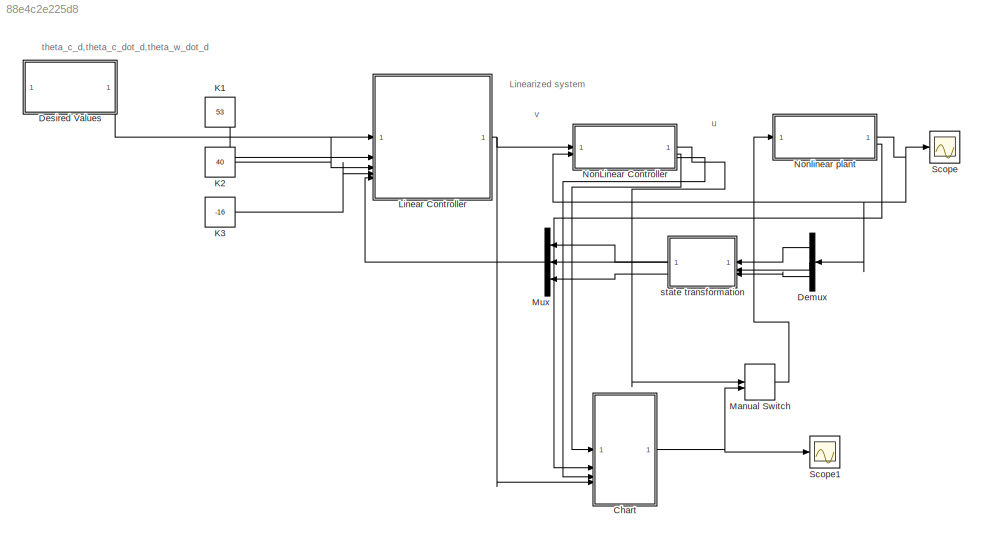
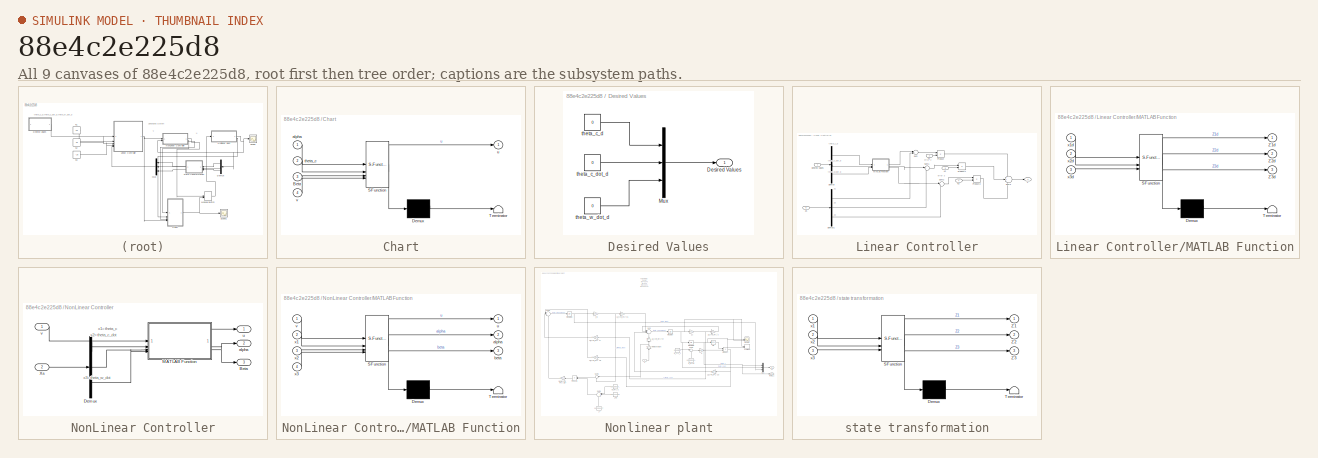
[diagram: thumbnail index - all 9 canvases of the model, root first then tree order]
MODEL slx_88e4c2e225d8
KIND model
CONFIG AbsTol = auto
CONFIG EnableMultiTasking = off
CONFIG FixedStep = 0.001
CONFIG MaxStep = auto
CONFIG MinStep = auto
CONFIG RelTol = 1e-3
CONFIG SampleTimeConstraint = Unconstrained
CONFIG SolverName = FixedStepAuto
CONFIG StartTime = 0.0
CONFIG StopTime = 5
BLOCK [SubSystem] Chart
  ErrorFcn = Stateflow.Translate.translate
  PermitHierarchicalResolution = ExplicitOnly
  SFBlockType = Chart
  TreatAsAtomicUnit = on
BLOCK [Demux] Chart/ Demux 
  Outputs = 1
BLOCK [S-Function] Chart/ SFunction 
  EnableBusSupport = off
  FunctionName = sf_sfun
  PortCounts = [4 2]
  SFcnIsStateOwnerBlock = off
  SFunctionDeploymentMode = off
  Tag = Stateflow S-Function 1
BLOCK [Terminator] Chart/ Terminator 
BLOCK [Inport] Chart/Beta
  Port = 3
BLOCK [Inport] Chart/alpha
BLOCK [Inport] Chart/theta_c
  Port = 2
BLOCK [Outport] Chart/u
BLOCK [Inport] Chart/v
  Port = 4
BLOCK [Demux] Demux
  Outputs = 3
BLOCK [SubSystem] Desired Values
BLOCK [Outport] Desired Values/Desired Values
BLOCK [Mux] Desired Values/Mux
  DisplayOption = bar
  Inputs = 3
BLOCK [Constant] Desired Values/theta_c_d
  Value = 0
BLOCK [Constant] Desired Values/theta_c_dot_d
  Value = 0
BLOCK [Constant] Desired Values/theta_w_dot_d
  Value = 0
BLOCK [Constant] K1
  Value = 53
BLOCK [Constant] K2
  Value = 40
BLOCK [Constant] K3
  Value = -16
BLOCK [SubSystem] Linear Controller
  NameLocation = top
BLOCK [Demux] Linear Controller/Demux
  Outputs = 3
BLOCK [Demux] Linear Controller/Demux1
  Outputs = 3
BLOCK [Inport] Linear Controller/Desired Values
BLOCK [Inport] Linear Controller/K1
  Port = 2
BLOCK [Inport] Linear Controller/K2
  Port = 3
BLOCK [Inport] Linear Controller/K3
  Port = 4
BLOCK [SubSystem] Linear Controller/MATLAB Function
  ErrorFcn = Stateflow.Translate.translate
  LibrarySourceBlock = simulink/User-Defined\nFunctions/MATLAB Function
  PermitHierarchicalResolution = ExplicitOnly
  SFBlockType = MATLAB Function
  TreatAsAtomicUnit = on
BLOCK [Demux] Linear Controller/MATLAB Function/ Demux 
  Outputs = 1
BLOCK [S-Function] Linear Controller/MATLAB Function/ SFunction 
  EnableBusSupport = off
  FunctionName = sf_sfun
  PortCounts = [3 4]
  SFcnIsStateOwnerBlock = off
  SFunctionDeploymentMode = off
  Tag = Stateflow S-Function 4
BLOCK [Terminator] Linear Controller/MATLAB Function/ Terminator 
BLOCK [Outport] Linear Controller/MATLAB Function/Z1d
BLOCK [Outport] Linear Controller/MATLAB Function/Z2d
  Port = 2
BLOCK [Outport] Linear Controller/MATLAB Function/Z3d
  Port = 3
BLOCK [Inport] Linear Controller/MATLAB Function/x1d
BLOCK [Inport] Linear Controller/MATLAB Function/x2d
  Port = 2
BLOCK [Inport] Linear Controller/MATLAB Function/x3d
  Port = 3
BLOCK [Product] Linear Controller/Product
BLOCK [Product] Linear Controller/Product1
BLOCK [Product] Linear Controller/Product2
BLOCK [Sum] Linear Controller/Sum
  Inputs = |+-
BLOCK [Sum] Linear Controller/Sum1
  Inputs = |+-
BLOCK [Sum] Linear Controller/Sum2
  Inputs = |+-
BLOCK [Sum] Linear Controller/Sum3
  Inputs = +++
BLOCK [Inport] Linear Controller/Zs
  Port = 5
BLOCK [Outport] Linear Controller/v
BLOCK [ManualSwitch] Manual Switch
BLOCK [Mux] Mux
  DisplayOption = bar
  Inputs = 3
BLOCK [SubSystem] NonLinear Controller
  NameLocation = top
BLOCK [Outport] NonLinear Controller/Beta
  Port = 3
BLOCK [Demux] NonLinear Controller/Demux
  Outputs = 3
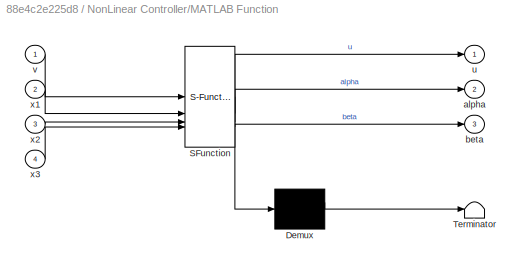
BLOCK [SubSystem] NonLinear Controller/MATLAB Function
  ErrorFcn = Stateflow.Translate.translate
  LibrarySourceBlock = simulink/User-Defined\nFunctions/MATLAB Function
  PermitHierarchicalResolution = ExplicitOnly
  SFBlockType = MATLAB Function
  TreatAsAtomicUnit = on
BLOCK [Demux] NonLinear Controller/MATLAB Function/ Demux 
  Outputs = 1
BLOCK [S-Function] NonLinear Controller/MATLAB Function/ SFunction 
  EnableBusSupport = off
  FunctionName = sf_sfun
  PortCounts = [4 4]
  SFcnIsStateOwnerBlock = off
  SFunctionDeploymentMode = off
  Tag = Stateflow S-Function 2
BLOCK [Terminator] NonLinear Controller/MATLAB Function/ Terminator 
BLOCK [Outport] NonLinear Controller/MATLAB Function/alpha
  Port = 2
BLOCK [Outport] NonLinear Controller/MATLAB Function/beta
  Port = 3
BLOCK [Outport] NonLinear Controller/MATLAB Function/u
BLOCK [Inport] NonLinear Controller/MATLAB Function/v
BLOCK [Inport] NonLinear Controller/MATLAB Function/x1
  Port = 2
BLOCK [Inport] NonLinear Controller/MATLAB Function/x2
  Port = 3
BLOCK [Inport] NonLinear Controller/MATLAB Function/x3
  Port = 4
BLOCK [Inport] NonLinear Controller/Xs
  Port = 2
BLOCK [Outport] NonLinear Controller/alpha
  Port = 2
BLOCK [Outport] NonLinear Controller/u
BLOCK [Inport] NonLinear Controller/v
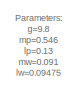
[diagram: Nonlinear plant - part 1/3, top center region]
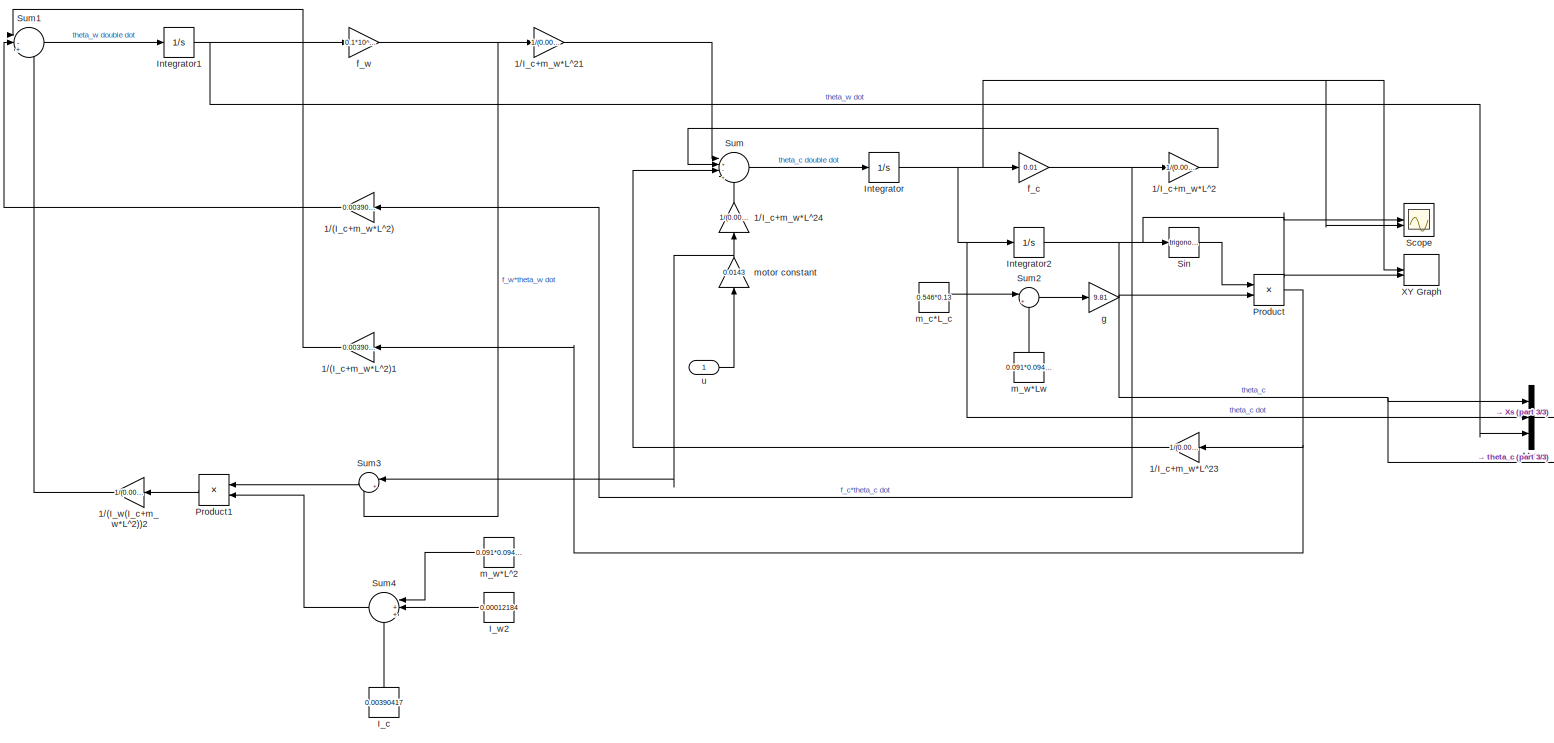
[diagram: Nonlinear plant - part 2/3, most of the canvas]
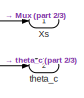
[diagram: Nonlinear plant - part 3/3, bottom right region]
BLOCK [SubSystem] Nonlinear plant
  NameLocation = top
BLOCK [Gain] Nonlinear plant/1//(I_c+m_w*L^2)
  Gain = 0.00390417+0.091*(0.09475^2)
BLOCK [Gain] Nonlinear plant/1//(I_c+m_w*L^2)1
  Gain = 0.00390417+0.091*(0.09475^2)
BLOCK [Gain] Nonlinear plant/1//(I_w(I_c+m_w*L^2))2
  Gain = 1/(0.00012184*((0.00390417)+0.091*0.09475^2))
BLOCK [Gain] Nonlinear plant/1//I_c+m_w*L^2
  Gain = 1/(0.00390417+(0.091)*(0.09475)^2)
BLOCK [Gain] Nonlinear plant/1//I_c+m_w*L^21
  Gain = 1/(0.00390417+(0.091)*(0.09475)^2)
BLOCK [Gain] Nonlinear plant/1//I_c+m_w*L^23
  Gain = 1/(0.00390417+(0.091)*(0.09475)^2)
BLOCK [Gain] Nonlinear plant/1//I_c+m_w*L^24
  Gain = 1/(0.00390417+(0.091)*(0.09475)^2)
  NameLocation = left
BLOCK [Constant] Nonlinear plant/I_c
  NameLocation = right
  Value = 0.00390417
BLOCK [Constant] Nonlinear plant/I_w2
  Value = 0.00012184
BLOCK [Integrator] Nonlinear plant/Integrator
BLOCK [Integrator] Nonlinear plant/Integrator1
BLOCK [Integrator] Nonlinear plant/Integrator2
BLOCK [Mux] Nonlinear plant/Mux
  DisplayOption = bar
  Inputs = 3
BLOCK [Product] Nonlinear plant/Product
BLOCK [Product] Nonlinear plant/Product1
BLOCK [Scope] Nonlinear plant/Scope
  Floating = off
  NumInputPorts = 2
  ScopeSpecificationString = Simulink.scopes.TimeScopeBlockCfg('CurrentConfiguration', extmgr.ConfigurationSet(extmgr.Configuration('Core','General UI',true),extmgr.Configuration('Core','Source UI',true),extmgr.Configuration('Sources','WiredSimulink',true,'DataLoggingVariableName','ScopeData1'),extmgr.Configuration('Visuals','Time Domain',true,'SerializedDisplays',{struct('MinYLimReal','-2041903.66107','MaxYLimReal','10538253...<+1547ch>
BLOCK [Trigonometry] Nonlinear plant/Sin
BLOCK [Sum] Nonlinear plant/Sum
  Inputs = |+-|+-
BLOCK [Sum] Nonlinear plant/Sum1
  Inputs = |-+|+
BLOCK [Sum] Nonlinear plant/Sum2
  Inputs = |++
BLOCK [Sum] Nonlinear plant/Sum3
  Inputs = |+-
BLOCK [Sum] Nonlinear plant/Sum4
  Inputs = |++|+
BLOCK [Record] Nonlinear plant/XY Graph
  CompatibilityTag = XY
  FileSettingsInternal = {"entries":[{"content":{"excelSettings":{"content":{},"type":"Streamout.ExcelSettings"}},"type":"Streamout.FileSettingStorage","uuid":"66a67cd6-09ae-4402-aca9-595720089f73"}],"packageUris":["http://schema.mathworks.com/mf0/streamout_blocks/R2020a"],"version":"1.0"}
  Layout = [1 1]
  SignalsInternal = {"entries":[{"content":{"signals":[{"content":{"blockPath":["Cube/Nonlinear plant/XY Graph"],"dimensions":[1],"domain":"Cube/Nonlinear plant/XY Graph","lineColor":"#0072bd","plots":[1],"port":1,"signalID":780,"signalName":"theta_c dot"},"type":"RecordBlkView.Signal","uuid":"a54ead99-843e-44f8-bb7c-9abc90be0651"},{"content":{"blockPath":["Cube/Nonlinear plant/XY Graph"],"dimensions":[1],"domain":"C...<+365ch>
  VisualizationBindings = {"xyplotplugin":{"info":[{"series":[{"bindingParametersList":[{"parameter":"Y-Axis","signalID":780,"signalName":"theta_c dot"},{"parameter":"X-Axis","signalID":783,"signalName":"theta_c"}],"seriesID":4721}],"subplotID":1}]}}
BLOCK [Outport] Nonlinear plant/Xs
BLOCK [Gain] Nonlinear plant/f_c
  Gain = 0.01
BLOCK [Gain] Nonlinear plant/f_w
  Gain = 0.1*10^-5
BLOCK [Gain] Nonlinear plant/g
  Gain = 9.81
BLOCK [Constant] Nonlinear plant/m_c*L_c
  Value = 0.546*0.13
BLOCK [Constant] Nonlinear plant/m_w*L^2
  Value = 0.091*0.09475^2
BLOCK [Constant] Nonlinear plant/m_w*Lw
  NameLocation = right
  Value = 0.091*0.09475
BLOCK [Gain] Nonlinear plant/motor constant
  Gain = 0.0143
  NameLocation = right
BLOCK [Outport] Nonlinear plant/theta_c
  Port = 2
BLOCK [Inport] Nonlinear plant/u
BLOCK [Scope] Scope
  Floating = off
  NumInputPorts = 1
  ScopeSpecificationString = Simulink.scopes.TimeScopeBlockCfg('CurrentConfiguration', extmgr.ConfigurationSet(extmgr.Configuration('Core','General UI',true),extmgr.Configuration('Core','Source UI',true),extmgr.Configuration('Sources','WiredSimulink',true),extmgr.Configuration('Visuals','Time Domain',true,'SerializedDisplays',{struct('MinYLimReal','-10.9946','MaxYLimReal','14.37195','YLabelReal','','MinYLimMag','0.00000','Max...<+1568ch>
BLOCK [Scope] Scope1
  Floating = off
  NumInputPorts = 1
  ScopeSpecificationString = Simulink.scopes.TimeScopeBlockCfg('CurrentConfiguration', extmgr.ConfigurationSet(extmgr.Configuration('Core','General UI',true),extmgr.Configuration('Core','Source UI',true),extmgr.Configuration('Sources','WiredSimulink',true,'DataLoggingVariableName','ScopeData1'),extmgr.Configuration('Visuals','Time Domain',true,'SerializedDisplays',{struct('MinYLimReal','-1.00000','MaxYLimReal','1.00000','YLab...<+1364ch>
BLOCK [SubSystem] state transformation
  ErrorFcn = Stateflow.Translate.translate
  LibrarySourceBlock = simulink/User-Defined\nFunctions/MATLAB Function
  PermitHierarchicalResolution = ExplicitOnly
  SFBlockType = MATLAB Function
  TreatAsAtomicUnit = on
BLOCK [Demux] state transformation/ Demux 
  Outputs = 1
BLOCK [S-Function] state transformation/ SFunction 
  EnableBusSupport = off
  FunctionName = sf_sfun
  PortCounts = [3 4]
  SFcnIsStateOwnerBlock = off
  SFunctionDeploymentMode = off
  Tag = Stateflow S-Function 3
BLOCK [Terminator] state transformation/ Terminator 
BLOCK [Outport] state transformation/Z1
BLOCK [Outport] state transformation/Z2
  Port = 2
BLOCK [Outport] state transformation/Z3
  Port = 3
BLOCK [Inport] state transformation/x1
BLOCK [Inport] state transformation/x2
  Port = 2
BLOCK [Inport] state transformation/x3
  Port = 3
ANNOTATION (root): Linearized system
ANNOTATION (root): theta_c_d,theta_c_dot_d,theta_w_dot_d
ANNOTATION (root): u
ANNOTATION (root): v
ANNOTATION Linear Controller: Z1
ANNOTATION Linear Controller: Z2
ANNOTATION Linear Controller: Z3
ANNOTATION Linear Controller: error 2
ANNOTATION Linear Controller: error 3
ANNOTATION Linear Controller: theta_c_d
ANNOTATION Linear Controller: theta_c_dot_d
ANNOTATION Linear Controller: theta_w_dot_d
ANNOTATION NonLinear Controller: x1=theta_c
ANNOTATION NonLinear Controller: x2=theta_c_dot
ANNOTATION NonLinear Controller: x3=theta_w_dot
ANNOTATION Nonlinear plant: Parameters: g=9.8 mp=0.546 lp=0.13 mw=0.091 lw=0.09475 Fp=0.01 Fw=0.1*10^-5 Km=0.0143 Ip=0.00390417 Iw=0.00012184
NET Chart:1 -> Manual Switch:2, Scope1:1
LINE Demux:1 -> state transformation:1
LINE Demux:2 -> state transformation:2
LINE Demux:3 -> state transformation:3
LINE Desired Values/Mux:1 -> Desired Values/Desired Values:1
LINE Desired Values/theta_c_d:1 -> Desired Values/Mux:1
LINE Desired Values/theta_c_dot_d:1 -> Desired Values/Mux:2
LINE Desired Values/theta_w_dot_d:1 -> Desired Values/Mux:3
LINE Desired Values:1 -> Linear Controller:1
LINE K1:1 -> Linear Controller:2
LINE K2:1 -> Linear Controller:3
LINE K3:1 -> Linear Controller:4
LINE Linear Controller/Demux1:1 -> Linear Controller/Sum:2
LINE Linear Controller/Demux1:2 -> Linear Controller/Sum1:2
LINE Linear Controller/Demux1:3 -> Linear Controller/Sum2:2
LINE Linear Controller/Demux:1 -> Linear Controller/MATLAB Function:1
LINE Linear Controller/Demux:2 -> Linear Controller/MATLAB Function:2
LINE Linear Controller/Demux:3 -> Linear Controller/MATLAB Function:3
LINE Linear Controller/Desired Values:1 -> Linear Controller/Demux:1
LINE Linear Controller/K1:1 -> Linear Controller/Product:2
LINE Linear Controller/K2:1 -> Linear Controller/Product1:2
LINE Linear Controller/K3:1 -> Linear Controller/Product2:2
LINE Linear Controller/MATLAB Function:1 -> Linear Controller/Sum:1
LINE Linear Controller/MATLAB Function:2 -> Linear Controller/Sum1:1
LINE Linear Controller/MATLAB Function:3 -> Linear Controller/Sum2:1
LINE Linear Controller/Product1:1 -> Linear Controller/Sum3:2
LINE Linear Controller/Product2:1 -> Linear Controller/Sum3:3
LINE Linear Controller/Product:1 -> Linear Controller/Sum3:1
LINE Linear Controller/Sum1:1 -> Linear Controller/Product1:1
LINE Linear Controller/Sum2:1 -> Linear Controller/Product2:1
LINE Linear Controller/Sum3:1 -> Linear Controller/v:1
LINE Linear Controller/Sum:1 -> Linear Controller/Product:1
LINE Linear Controller/Zs:1 -> Linear Controller/Demux1:1
NET Linear Controller:1 -> Chart:4, NonLinear Controller:1
LINE Manual Switch:1 -> Nonlinear plant:1
LINE Mux:1 -> Linear Controller:5
LINE NonLinear Controller/Demux:1 -> NonLinear Controller/MATLAB Function:2
LINE NonLinear Controller/Demux:2 -> NonLinear Controller/MATLAB Function:3
LINE NonLinear Controller/Demux:3 -> NonLinear Controller/MATLAB Function:4
LINE NonLinear Controller/MATLAB Function:1 -> NonLinear Controller/u:1
LINE NonLinear Controller/MATLAB Function:2 -> NonLinear Controller/alpha:1
LINE NonLinear Controller/MATLAB Function:3 -> NonLinear Controller/Beta:1
LINE NonLinear Controller/Xs:1 -> NonLinear Controller/Demux:1
LINE NonLinear Controller/v:1 -> NonLinear Controller/MATLAB Function:1
LINE NonLinear Controller:1 -> Manual Switch:1
LINE NonLinear Controller:2 -> Chart:1
LINE NonLinear Controller:3 -> Chart:3
LINE Nonlinear plant/1//(I_c+m_w*L^2)1:1 -> Nonlinear plant/Sum1:1
LINE Nonlinear plant/1//(I_c+m_w*L^2):1 -> Nonlinear plant/Sum1:2
LINE Nonlinear plant/1//(I_w(I_c+m_w*L^2))2:1 -> Nonlinear plant/Sum1:3
LINE Nonlinear plant/1//I_c+m_w*L^21:1 -> Nonlinear plant/Sum:1
LINE Nonlinear plant/1//I_c+m_w*L^23:1 -> Nonlinear plant/Sum:3
LINE Nonlinear plant/1//I_c+m_w*L^24:1 -> Nonlinear plant/Sum:4
LINE Nonlinear plant/1//I_c+m_w*L^2:1 -> Nonlinear plant/Sum:2
LINE Nonlinear plant/I_c:1 -> Nonlinear plant/Sum4:3
LINE Nonlinear plant/I_w2:1 -> Nonlinear plant/Sum4:2
NET Nonlinear plant/Integrator1:1 -> Nonlinear plant/Mux:3, Nonlinear plant/f_w:1
NET Nonlinear plant/Integrator2:1 -> Nonlinear plant/Mux:1, Nonlinear plant/Scope:1, Nonlinear plant/Sin:1, Nonlinear plant/XY Graph:2, Nonlinear plant/theta_c:1
NET Nonlinear plant/Integrator:1 -> Nonlinear plant/Integrator2:1, Nonlinear plant/Mux:2, Nonlinear plant/Scope:2, Nonlinear plant/XY Graph:1, Nonlinear plant/f_c:1
LINE Nonlinear plant/Mux:1 -> Nonlinear plant/Xs:1
LINE Nonlinear plant/Product1:1 -> Nonlinear plant/1//(I_w(I_c+m_w*L^2))2:1
NET Nonlinear plant/Product:1 -> Nonlinear plant/1//(I_c+m_w*L^2)1:1, Nonlinear plant/1//I_c+m_w*L^23:1
LINE Nonlinear plant/Sin:1 -> Nonlinear plant/Product:1
LINE Nonlinear plant/Sum1:1 -> Nonlinear plant/Integrator1:1
LINE Nonlinear plant/Sum2:1 -> Nonlinear plant/g:1
LINE Nonlinear plant/Sum3:1 -> Nonlinear plant/Product1:1
LINE Nonlinear plant/Sum4:1 -> Nonlinear plant/Product1:2
LINE Nonlinear plant/Sum:1 -> Nonlinear plant/Integrator:1
NET Nonlinear plant/f_c:1 -> Nonlinear plant/1//(I_c+m_w*L^2):1, Nonlinear plant/1//I_c+m_w*L^2:1
NET Nonlinear plant/f_w:1 -> Nonlinear plant/1//I_c+m_w*L^21:1, Nonlinear plant/Sum3:2
LINE Nonlinear plant/g:1 -> Nonlinear plant/Product:2
LINE Nonlinear plant/m_c*L_c:1 -> Nonlinear plant/Sum2:1
LINE Nonlinear plant/m_w*L^2:1 -> Nonlinear plant/Sum4:1
LINE Nonlinear plant/m_w*Lw:1 -> Nonlinear plant/Sum2:2
NET Nonlinear plant/motor constant:1 -> Nonlinear plant/1//I_c+m_w*L^24:1, Nonlinear plant/Sum3:1
LINE Nonlinear plant/u:1 -> Nonlinear plant/motor constant:1
NET Nonlinear plant:1 -> Demux:1, NonLinear Controller:2, Scope:1
LINE Nonlinear plant:2 -> Chart:2
LINE state transformation:1 -> Mux:1
LINE state transformation:2 -> Mux:2
LINE state transformation:3 -> Mux:3
note: NET lines group one-source signal fan-out (src -> all destinations, sorted); 1:1 wires keep LINE
CHART Chart states=4 transitions=6
  STATE_LABEL 'On\n\n\n\n\n\n\n'
  STATE_LABEL 'Balanced \nentry:\n\nduring:\nu=0;'
  STATE_LABEL 'Falling \nentry:\n\nduring:\nu=alpha+Beta*v;'
  STATE_LABEL '[theta_c >5 || theta_c<-5]'
  STATE_LABEL '[theta_c>-5 && theta_c<5]'
  STATE_LABEL 'Balanced \nentry:\n\nduring:\nu=0;'
  STATE_LABEL 'Falling \nentry:\n\nduring:\nu=alpha+Beta*v;'
  STATE_LABEL 'Off\nentry:\n\nduring:\nu=0;'
CHART NonLinear Controller/MATLAB Function states=1 transitions=1
  STATE_LABEL 'eML_blk_kernel()'
  STATE_LABEL 'SCRIPT:\nfunction [u,alpha,beta] = fcn(v,x1,x2,x3)\n\n%Parameters: \ng=9.8;\nmp=0.546;\nlp=0.13;\nmw=0.091;\nlw=0.09475;\nFp=0.01;\nFw=0.1*10^-5;\nKm=0.0143;\nIp=0.00390417;\nIw=0.00012184;\n\nalpha =(x2*((49*g*x2*sin(x1)*(lp*mp + lw*mw))/(60*(mw*lw^2 + Ip)) - (g*cos(x1)*((11*Fw)/(60*(mw*lw^2 + Ip)) - Fw/(Iw*(mw*lw^2 + Ip)))*(lp*mp + lw*mw))/(mw*lw^2 + Ip) + (g*cos(x1)*((49*Fp)/(60*(mw*lw^2 + Ip)) - 467/225)*(lp...<+1330ch>'
CHART state transformation states=1 transitions=1
  STATE_LABEL 'eML_blk_kernel()'
  STATE_LABEL 'SCRIPT:\nfunction [Z1,Z2,Z3] = fcn(x1,x2,x3)\n\n%Parameters \ng=9.8;\nmp=0.546;\nlp=0.13;\nmw=0.091;\nlw=0.09475;\nFp=0.01;\nFw=0.1*10^-5;\nKm=0.0143;\nIp=0.00390417;\nIw=0.00012184;\n\n\nZ1 = (-467/225)*x1+(11/60)*x2+x3;\nZ2 =(Fp*x2 - g*sin(x1)*(lp*mp + lw*mw))/(mw*lw^2 + Ip) - (467*x2)/225 + (11*(Fw*x3 - Fp*x2+ g*sin(x1)*(lp*mp + lw*mw)))/(60*(mw*lw^2 + Ip)) + (mw*lw^2 + Ip + Iw - Fw*x3)/(Iw*(mw*lw^2 + Ip));\nZ3 ...<+319ch>'
CHART Linear Controller/MATLAB Function states=1 transitions=1
  STATE_LABEL 'eML_blk_kernel()'
  STATE_LABEL 'SCRIPT:\nfunction [Z1d,Z2d,Z3d] = fcn(x1d,x2d,x3d)\n\n%Parameters \ng=9.8\nmp=0.546\nlp=0.13\nmw=0.091\nlw=0.09475\nFp=0.01\nFw=0.1*10^-5\nKm=0.0143\nIp=0.00390417\nIw=0.00012184\n\nZ1d = (-467/225)*x1d+(11/60)*x2d+x3d;\nZ2d= (Fp*x2d - g*sin(x1d)*(lp*mp + lw*mw))/(mw*lw^2 + Ip) - (467*x2d)/225 + (11*(Fw*x3d - Fp*x2d+ g*sin(x1d)*(lp*mp + lw*mw)))/(60*(mw*lw^2 + Ip)) + (mw*lw^2 + Ip + Iw - Fw*x3d)/(Iw*(mw*lw^2 + Ip...<+335ch>'
CHART  states=0 transitions=0
CHART  states=0 transitions=0
CHART  states=0 transitions=0
CHART  states=0 transitions=0
